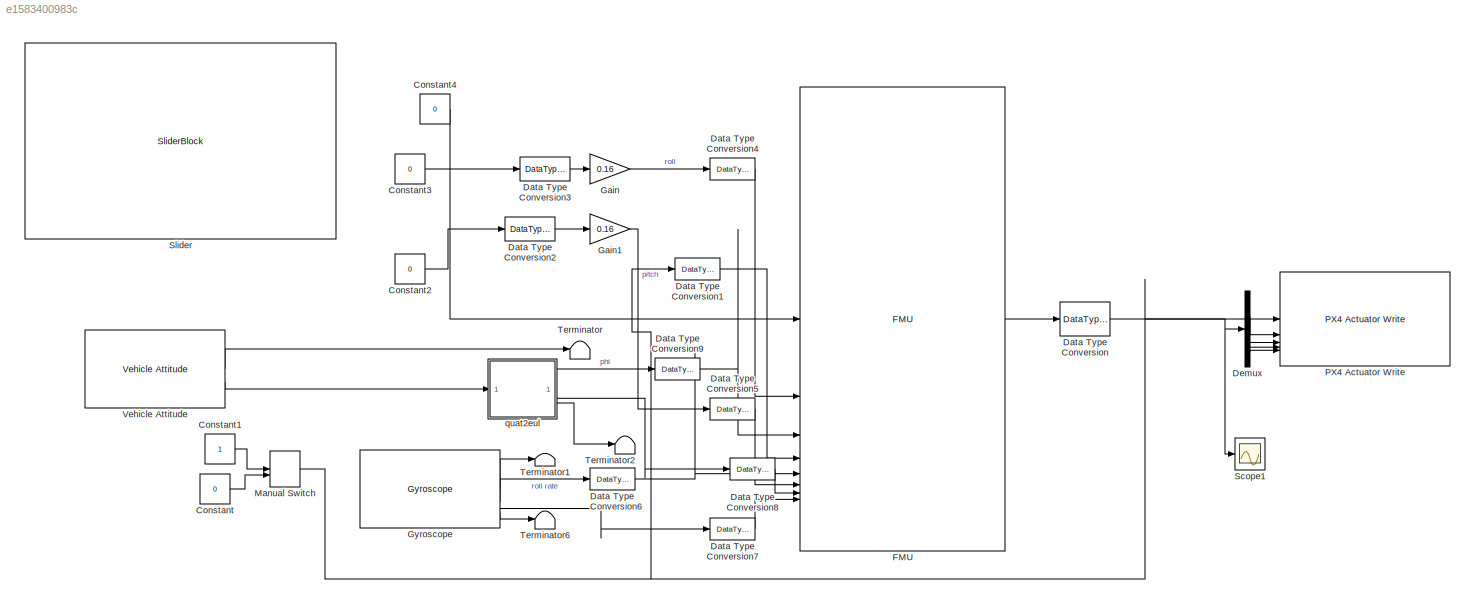
MODEL slx_e1583400983c
KIND model
CONFIG AbsTol = auto
CONFIG EnableMultiTasking = on
CONFIG FixedStep = 0.001
CONFIG MaxStep = auto
CONFIG MinStep = auto
CONFIG RelTol = 1e-3
CONFIG SampleTimeConstraint = Unconstrained
CONFIG SolverName = FixedStepAuto
CONFIG StartTime = 0.0
CONFIG StopTime = inf
BLOCK [Constant] Constant
  OutDataTypeStr = boolean
  Value = 0
BLOCK [Constant] Constant1
  OutDataTypeStr = boolean
BLOCK [Constant] Constant2
  Value = 0
BLOCK [Constant] Constant3
  Value = 0
BLOCK [Constant] Constant4
  Value = 0
BLOCK [DataTypeConversion] Data Type Conversion
  OutDataTypeStr = single
  RndMeth = Floor
  SaturateOnIntegerOverflow = off
BLOCK [DataTypeConversion] Data Type Conversion1
  OutDataTypeStr = double
  RndMeth = Floor
  SaturateOnIntegerOverflow = off
BLOCK [DataTypeConversion] Data Type Conversion2
  OutDataTypeStr = single
  RndMeth = Floor
  SaturateOnIntegerOverflow = off
BLOCK [DataTypeConversion] Data Type Conversion3
  OutDataTypeStr = single
  RndMeth = Floor
  SaturateOnIntegerOverflow = off
BLOCK [DataTypeConversion] Data Type Conversion4
  OutDataTypeStr = double
  RndMeth = Floor
  SaturateOnIntegerOverflow = off
BLOCK [DataTypeConversion] Data Type Conversion5
  OutDataTypeStr = double
  RndMeth = Floor
  SaturateOnIntegerOverflow = off
BLOCK [DataTypeConversion] Data Type Conversion6
  OutDataTypeStr = double
  RndMeth = Floor
  SaturateOnIntegerOverflow = off
BLOCK [DataTypeConversion] Data Type Conversion7
  OutDataTypeStr = double
  RndMeth = Floor
  SaturateOnIntegerOverflow = off
BLOCK [DataTypeConversion] Data Type Conversion8
  OutDataTypeStr = double
  RndMeth = Floor
  SaturateOnIntegerOverflow = off
BLOCK [DataTypeConversion] Data Type Conversion9
  OutDataTypeStr = double
  RndMeth = Floor
  SaturateOnIntegerOverflow = off
BLOCK [Demux] Demux
BLOCK [FMU] FMU
  FMUCreateBusObject = off
  FMUInitializeEnumObject = off
  FMUMode = CoSimulation
  FMUName = pruebafmu2.fmu
  MaskDisplay = if (exist([Simulink.fileGenControl('get','CacheFolder') '\slprj\_fmu\f2ec0e234a2d00d638c54fa383704903\pruebafmu2\model.png'],'file'))\n    image([Simulink.fileGenControl('get','CacheFolder') '\slprj\_fmu\f2ec0e234a2d00d638c54fa383704903\pruebafmu2\model.png']);\nelse\n    disp('pruebafmu2');\nend\nport_label('output',1,'Out1');\nport_label('input',1,'thrust');\nport_label('input',2,'roll');\nport_label('i...<+172ch>
  MaskType = pruebafmu2 [Co-Simulation, v2.0]
BLOCK [Gain] Gain
  Gain = 0.16
BLOCK [Gain] Gain1
  Gain = 0.16
BLOCK [Reference] Gyroscope  REF=px4Sensorslib/Gyroscope
  SourceBlock = px4Sensorslib/Gyroscope
  SourceType = PX4 Gyroscope
BLOCK [ManualSwitch] Manual Switch
  CurrentSetting = 0
BLOCK [Reference] PX4 Actuator Write  REF=px4Peripheralslib/PX4 Actuator Write
  SourceBlock = px4Peripheralslib/PX4 Actuator Write
  SourceType = px4.internal.block.PX4Actuators
BLOCK [Scope] Scope1
  ActiveDisplayYMaximum = 0.42208466280379647
  ActiveDisplayYMinimum = 0.37234214547850747
  DataLoggingVariableName = ScopeData3
  Floating = off
  GraphicalSettings = {"AxesScalingProperties":{"AlignXAxis":"Center","AlignYAxis":"Center","AutoScaleXAxisLimits":false,"AxesScaling":"Manual","AxesScalingNumUpdates":10,"ExpandOnly":true,"ScaleAxesLimitsAtStop":false,"XAxisDataRange":100,"YAxisDataRange":80},"DisplayProperties":{"ColorOrder":["auto","auto","auto","auto","auto","auto","auto","auto","auto","auto","auto","auto","auto","auto","auto","auto","auto","auto",...<+2371ch>
  MultipleDisplayCache = [{"MaxYLimMag":1.125,"MaxYLimReal":0.42208466280379647,"MinYLimMag":0,"MinYLimReal":0.37234214547850747,"PlotAsMagnitudePhase":false,"ShowGrid":true,"ShowLegend":true,"Title":"%<SignalLabel>","YLabel":""}]
  NumInputPorts = 1
  ScopeFrameLocation = window
  ShowLegend = on
  WasSavedAsWebScope = on
  WindowPosition = [1.000000,49.000000,1536.000000,793.000000,]
BLOCK [SliderBlock] Slider
  ScaleMax = 0.5
BLOCK [Terminator] Terminator
BLOCK [Terminator] Terminator1
BLOCK [Terminator] Terminator2
BLOCK [Terminator] Terminator6
BLOCK [Reference] Vehicle Attitude  REF=px4Sensorslib/Vehicle Attitude
  SourceBlock = px4Sensorslib/Vehicle Attitude
  SourceType = PX4 Vehicle Attitude
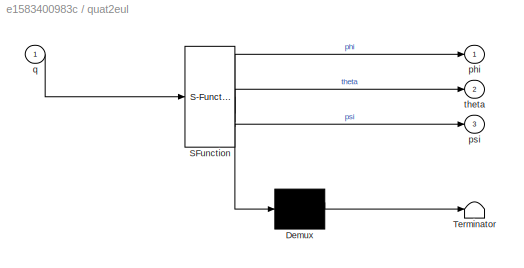
BLOCK [SubSystem] quat2eul
  ErrorFcn = Stateflow.Translate.translate
  PermitHierarchicalResolution = ExplicitOnly
  SFBlockType = MATLAB Function
  TreatAsAtomicUnit = on
BLOCK [Demux] quat2eul/ Demux 
  Outputs = 1
BLOCK [S-Function] quat2eul/ SFunction 
  EnableBusSupport = off
  FunctionName = sf_sfun
  PortCounts = [1 4]
  SFcnIsStateOwnerBlock = off
  SFunctionDeploymentMode = off
  Tag = Stateflow S-Function 10
BLOCK [Terminator] quat2eul/ Terminator 
BLOCK [Outport] quat2eul/phi
  VectorParamsAs1DForOutWhenUnconnected = off
BLOCK [Outport] quat2eul/psi
  Port = 3
  VectorParamsAs1DForOutWhenUnconnected = off
BLOCK [Inport] quat2eul/q
BLOCK [Outport] quat2eul/theta
  Port = 2
  VectorParamsAs1DForOutWhenUnconnected = off
LINE Constant1:1 -> Manual Switch:1
LINE Constant2:1 -> Data Type Conversion2:1
LINE Constant3:1 -> Data Type Conversion3:1
LINE Constant4:1 -> FMU:1
LINE Constant:1 -> Manual Switch:2
LINE Data Type Conversion1:1 -> FMU:4
LINE Data Type Conversion2:1 -> Gain1:1
LINE Data Type Conversion3:1 -> Gain:1
LINE Data Type Conversion4:1 -> FMU:2
LINE Data Type Conversion5:1 -> FMU:6
LINE Data Type Conversion6:1 -> FMU:5
LINE Data Type Conversion7:1 -> FMU:8
LINE Data Type Conversion8:1 -> FMU:7
LINE Data Type Conversion9:1 -> FMU:3
NET Data Type Conversion:1 -> Demux:1, Scope1:1
LINE Demux:1 -> PX4 Actuator Write:2
LINE Demux:2 -> PX4 Actuator Write:3
LINE Demux:3 -> PX4 Actuator Write:4
LINE Demux:4 -> PX4 Actuator Write:5
LINE FMU:1 -> Data Type Conversion:1
LINE Gain1:1 -> Data Type Conversion5:1
LINE Gain:1 -> Data Type Conversion4:1
LINE Gyroscope:1 -> Terminator1:1
LINE Gyroscope:2 -> Data Type Conversion6:1
LINE Gyroscope:3 -> Data Type Conversion7:1
LINE Gyroscope:4 -> Terminator6:1
NET Manual Switch:1 -> Data Type Conversion1:1, PX4 Actuator Write:1
LINE Vehicle Attitude:1 -> Terminator:1
LINE Vehicle Attitude:2 -> quat2eul:1
LINE quat2eul:1 -> Data Type Conversion9:1
LINE quat2eul:2 -> Data Type Conversion8:1
LINE quat2eul:3 -> Terminator2:1
note: NET lines group one-source signal fan-out (src -> all destinations, sorted); 1:1 wires keep LINE
CHART quat2eul states=1 transitions=1
  STATE_LABEL 'eML_blk_kernel()'
  STATE_LABEL 'SCRIPT:\nfunction [phi,theta,psi] = quat2eul(q)\n\n% Quaternion conversion to Euler angles based on the PX4 Firmware v1.10.2\n% release.\n\nphi = atan2(2*(q(1)*q(2) + q(3)* q(4)), q(1)^2 - q(2)^2 - q(3)^2 + q(4)^2);\ntheta = asin(-2*(q(2)*q(4) - q(1)*q(3)));\npsi = atan2(2*(q(2)*q(3) + q(1)* q(4)), q(1)^2 + q(2)^2 - q(3)^2 - q(4)^2);\nend'
CHART  states=0 transitions=0
